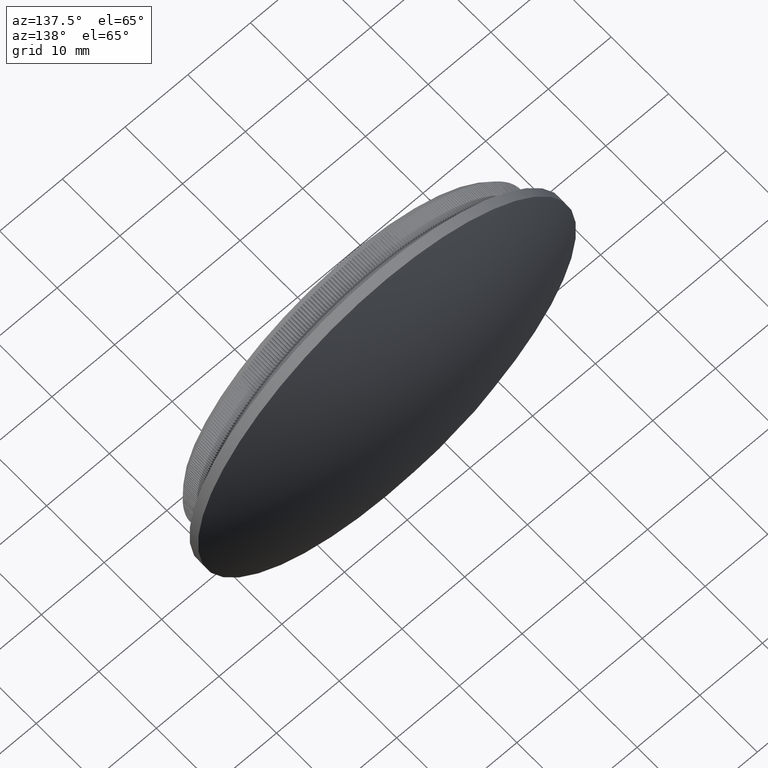
[diagram: clean part render]
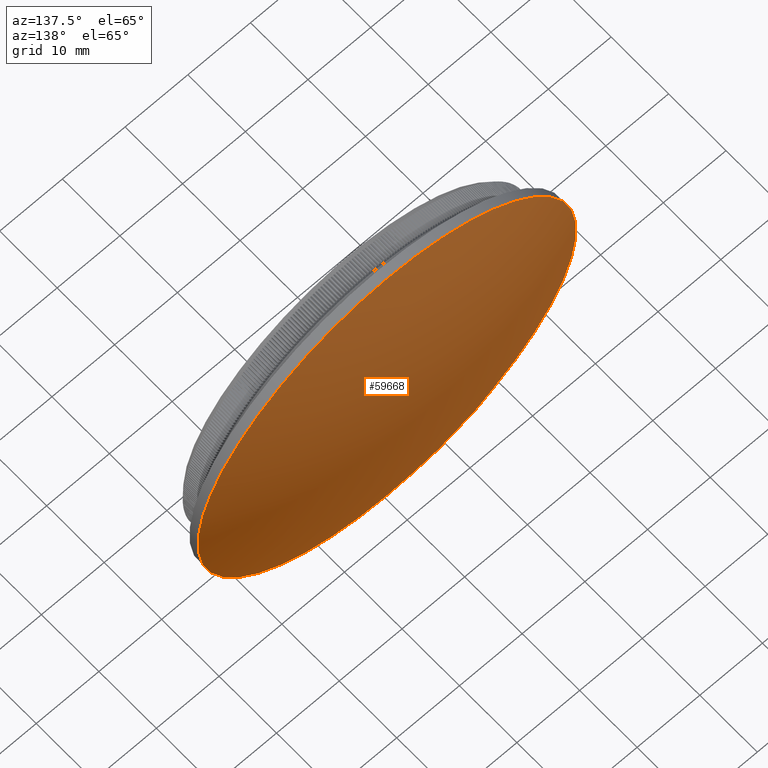
[diagram: same view with one face highlighted and labeled with its STEP entity id]
A machine part, auxiliary view. The second image highlights one B-rep face of the part: STEP entity #59668.
In plain terms, the highlighted spherical surface has radius 85.3884 mm.
Its self-contained STEP definition (entity closure, byte-faithful):
#152 = FACE_OUTER_BOUND ( 'NONE', #3049, .T. ) ;
#3049 = EDGE_LOOP ( 'NONE', ( #18022 ) ) ;
#7769 = AXIS2_PLACEMENT_3D ( 'NONE', #49488, #30076, #25311 ) ;
#10466 = CARTESIAN_POINT ( 'NONE',  ( 0.000000000000000000, 6.500000000000005329, 0.000000000000000000 ) ) ;
#11538 = AXIS2_PLACEMENT_3D ( 'NONE', #10466, #35114, #50581 ) ;
#16530 = SPHERICAL_SURFACE ( 'NONE', #7769, 85.38840909090914977 ) ;
#18022 = ORIENTED_EDGE ( 'NONE', *, *, #56395, .F. ) ;
#25311 = DIRECTION ( 'NONE',  ( 1.000000000000000000, 0.000000000000000000, 0.000000000000000000 ) ) ;
#30076 = DIRECTION ( 'NONE',  ( 0.000000000000000000, 0.000000000000000000, 1.000000000000000000 ) ) ;
#35114 = DIRECTION ( 'NONE',  ( -0.000000000000000000, -1.000000000000000000, -0.000000000000000000 ) ) ;
#35206 = VERTEX_POINT ( 'NONE', #36672 ) ;
#36672 = CARTESIAN_POINT ( 'NONE',  ( 0.000000000000000000, 6.500000000000005329, -30.14999999999999858 ) ) ;
#38543 = CIRCLE ( 'NONE', #11538, 30.14999999999999858 ) ;
#49488 = CARTESIAN_POINT ( 'NONE',  ( 0.000000000000000000, -73.38840909090916398, 0.000000000000000000 ) ) ;
#50581 = DIRECTION ( 'NONE',  ( 0.000000000000000000, 0.000000000000000000, -1.000000000000000000 ) ) ;
#56395 = EDGE_CURVE ( 'NONE', #35206, #35206, #38543, .T. ) ;
#59668 = ADVANCED_FACE ( 'NONE', ( #152 ), #16530, .T. ) ;